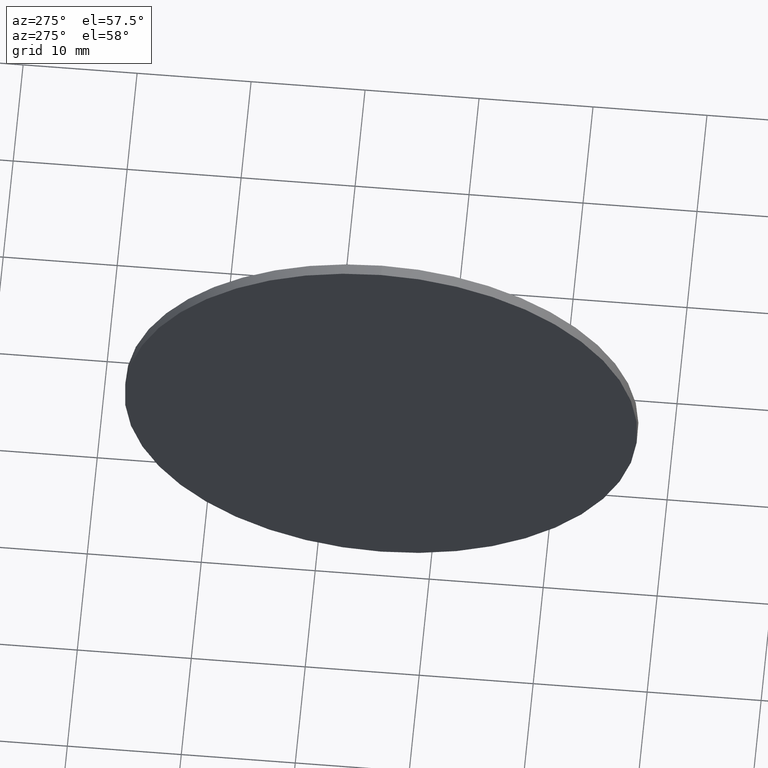
[diagram: clean part render]
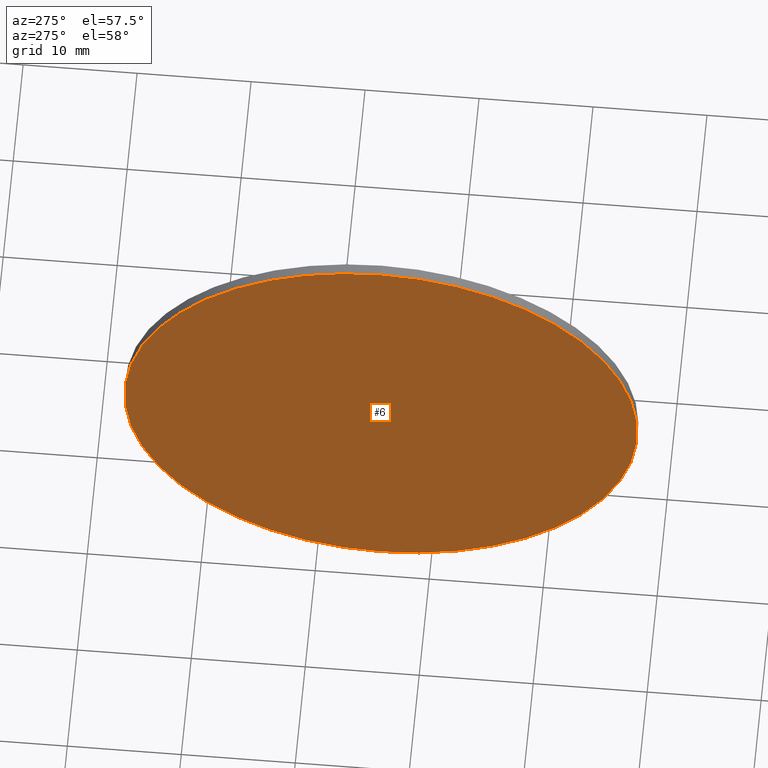
[diagram: same view with one face highlighted and labeled with its STEP entity id]
A machine part, auxiliary view. The second image highlights one B-rep face of the part: STEP entity #6.
In plain terms, the highlighted planar face has unit normal (1, 0, 0).
Its self-contained STEP definition (entity closure, byte-faithful):
#6 = ADVANCED_FACE ( 'NONE', ( #163 ), #118, .F. ) ;
#15 = DIRECTION ( 'NONE',  ( -1.000000000000000000, -0.0000000000000000000, -0.0000000000000000000 ) ) ;
#16 = CIRCLE ( 'NONE', #114, 22.49999999999999300 ) ;
#25 = AXIS2_PLACEMENT_3D ( 'NONE', #158, #15, #51 ) ;
#26 = DIRECTION ( 'NONE',  ( -1.000000000000000000, -0.0000000000000000000, -0.0000000000000000000 ) ) ;
#27 = DIRECTION ( 'NONE',  ( 0.0000000000000000000, 0.0000000000000000000, -1.000000000000000000 ) ) ;
#51 = DIRECTION ( 'NONE',  ( 0.0000000000000000000, 0.0000000000000000000, 1.000000000000000000 ) ) ;
#52 = ORIENTED_EDGE ( 'NONE', *, *, #78, .T. ) ;
#55 = VERTEX_POINT ( 'NONE', #69 ) ;
#57 = CIRCLE ( 'NONE', #25, 22.49999999999999300 ) ;
#58 = CARTESIAN_POINT ( 'NONE',  ( 191.8594665386367500, -255.6056703500554500, 0.0000000000000000000 ) ) ;
#60 = DIRECTION ( 'NONE',  ( 1.000000000000000000, 0.0000000000000000000, 0.0000000000000000000 ) ) ;
#69 = CARTESIAN_POINT ( 'NONE',  ( 191.8594665386367500, -255.6056703500554500, -22.49999999999999300 ) ) ;
#73 = EDGE_LOOP ( 'NONE', ( #52, #113 ) ) ;
#78 = EDGE_CURVE ( 'NONE', #159, #55, #16, .T. ) ;
#105 = CARTESIAN_POINT ( 'NONE',  ( 191.8594665386367500, -255.6056703500554500, 0.0000000000000000000 ) ) ;
#106 = DIRECTION ( 'NONE',  ( 0.0000000000000000000, 0.0000000000000000000, 1.000000000000000000 ) ) ;
#113 = ORIENTED_EDGE ( 'NONE', *, *, #130, .T. ) ;
#114 = AXIS2_PLACEMENT_3D ( 'NONE', #105, #26, #106 ) ;
#118 = PLANE ( 'NONE',  #152 ) ;
#130 = EDGE_CURVE ( 'NONE', #55, #159, #57, .T. ) ;
#143 = CARTESIAN_POINT ( 'NONE',  ( 191.8594665386367500, -255.6056703500554500, 22.49999999999999300 ) ) ;
#152 = AXIS2_PLACEMENT_3D ( 'NONE', #58, #60, #27 ) ;
#158 = CARTESIAN_POINT ( 'NONE',  ( 191.8594665386367500, -255.6056703500554500, 0.0000000000000000000 ) ) ;
#159 = VERTEX_POINT ( 'NONE', #143 ) ;
#163 = FACE_OUTER_BOUND ( 'NONE', #73, .T. ) ;